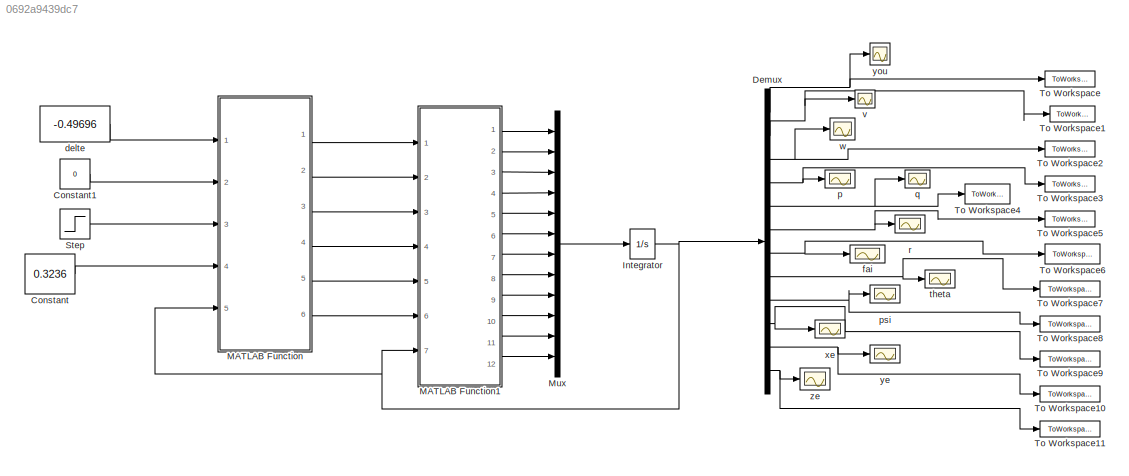
MODEL slx_0692a9439dc7
KIND model
CONFIG AbsTol = auto
CONFIG FixedStep = 0.1
CONFIG MaxStep = auto
CONFIG MinStep = auto
CONFIG RelTol = 1e-3
CONFIG SampleTimeConstraint = Unconstrained
CONFIG Solver = VariableStepAuto
CONFIG SolverMode = Auto
CONFIG SolverName = VariableStepAuto
CONFIG StartTime = 0.0
CONFIG StopTime = 5000
BLOCK [Constant] Constant
  Value = 0.3236
BLOCK [Constant] Constant1
  Value = 0
BLOCK [Demux] Demux
  DisplayOption = bar
  Outputs = 12
  Ports = [1, 12]
BLOCK [Integrator] Integrator
  InitialCondition = [189.1684 0 17.7568 0 0 0 0 0.0936 0 0 0 0]
  Ports = [1, 1]
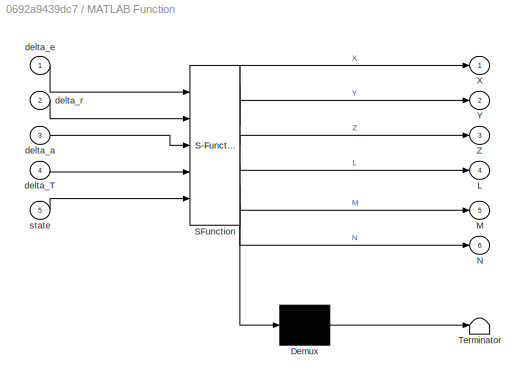
BLOCK [SubSystem] MATLAB Function
  ErrorFcn = Stateflow.Translate.translate
  PermitHierarchicalResolution = ExplicitOnly
  Ports = [5, 6]
  RequestExecContextInheritance = off
  SFBlockType = MATLAB Function
  TreatAsAtomicUnit = on
  Variant = off
BLOCK [Demux] MATLAB Function/ Demux 
  Outputs = 1
  Ports = [1, 1]
BLOCK [S-Function] MATLAB Function/ SFunction 
  EnableBusSupport = on
  FunctionName = sf_sfun
  PortCounts = [5 7]
  Ports = [5, 7]
  SFunctionDeploymentMode = off
  Tag = Stateflow S-Function Quan 2
BLOCK [Terminator] MATLAB Function/ Terminator 
BLOCK [Outport] MATLAB Function/L
  IconDisplay = Port number
  Port = 4
BLOCK [Outport] MATLAB Function/M
  IconDisplay = Port number
  Port = 5
BLOCK [Outport] MATLAB Function/N
  IconDisplay = Port number
  Port = 6
BLOCK [Outport] MATLAB Function/X
  IconDisplay = Port number
BLOCK [Outport] MATLAB Function/Y
  IconDisplay = Port number
  Port = 2
BLOCK [Outport] MATLAB Function/Z
  IconDisplay = Port number
  Port = 3
BLOCK [Inport] MATLAB Function/delta_T
  IconDisplay = Port number
  Port = 4
BLOCK [Inport] MATLAB Function/delta_a
  IconDisplay = Port number
  Port = 3
BLOCK [Inport] MATLAB Function/delta_e
  IconDisplay = Port number
BLOCK [Inport] MATLAB Function/delta_r
  IconDisplay = Port number
  Port = 2
BLOCK [Inport] MATLAB Function/state
  IconDisplay = Port number
  Port = 5
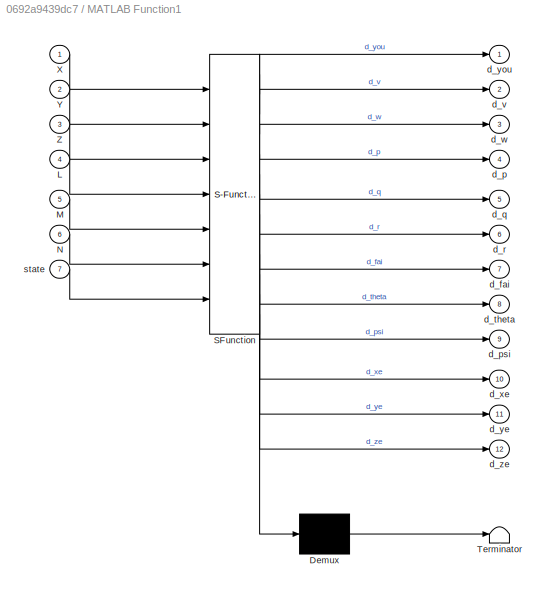
BLOCK [SubSystem] MATLAB Function1
  ErrorFcn = Stateflow.Translate.translate
  PermitHierarchicalResolution = ExplicitOnly
  Ports = [7, 12]
  RequestExecContextInheritance = off
  SFBlockType = MATLAB Function
  TreatAsAtomicUnit = on
  Variant = off
BLOCK [Demux] MATLAB Function1/ Demux 
  Outputs = 1
  Ports = [1, 1]
BLOCK [S-Function] MATLAB Function1/ SFunction 
  EnableBusSupport = on
  FunctionName = sf_sfun
  PortCounts = [7 13]
  Ports = [7, 13]
  SFunctionDeploymentMode = off
  Tag = Stateflow S-Function Quan 1
BLOCK [Terminator] MATLAB Function1/ Terminator 
BLOCK [Inport] MATLAB Function1/L
  IconDisplay = Port number
  Port = 4
BLOCK [Inport] MATLAB Function1/M
  IconDisplay = Port number
  Port = 5
BLOCK [Inport] MATLAB Function1/N
  IconDisplay = Port number
  Port = 6
BLOCK [Inport] MATLAB Function1/X
  IconDisplay = Port number
BLOCK [Inport] MATLAB Function1/Y
  IconDisplay = Port number
  Port = 2
BLOCK [Inport] MATLAB Function1/Z
  IconDisplay = Port number
  Port = 3
BLOCK [Outport] MATLAB Function1/d_fai
  IconDisplay = Port number
  Port = 7
BLOCK [Outport] MATLAB Function1/d_p
  IconDisplay = Port number
  Port = 4
BLOCK [Outport] MATLAB Function1/d_psi
  IconDisplay = Port number
  Port = 9
BLOCK [Outport] MATLAB Function1/d_q
  IconDisplay = Port number
  Port = 5
BLOCK [Outport] MATLAB Function1/d_r
  IconDisplay = Port number
  Port = 6
BLOCK [Outport] MATLAB Function1/d_theta
  IconDisplay = Port number
  Port = 8
BLOCK [Outport] MATLAB Function1/d_v
  IconDisplay = Port number
  Port = 2
BLOCK [Outport] MATLAB Function1/d_w
  IconDisplay = Port number
  Port = 3
BLOCK [Outport] MATLAB Function1/d_xe
  IconDisplay = Port number
  Port = 10
BLOCK [Outport] MATLAB Function1/d_ye
  IconDisplay = Port number
  Port = 11
BLOCK [Outport] MATLAB Function1/d_you
  IconDisplay = Port number
BLOCK [Outport] MATLAB Function1/d_ze
  IconDisplay = Port number
  Port = 12
BLOCK [Inport] MATLAB Function1/state
  IconDisplay = Port number
  Port = 7
BLOCK [Mux] Mux
  DisplayOption = bar
  Inputs = 12
  Ports = [12, 1]
BLOCK [Step] Step
  After = 0.0005
  SampleTime = 0
  Time = 0
BLOCK [ToWorkspace] To Workspace
  FixptAsFi = on
  MaxDataPoints = inf
  Ports = [1]
  SampleTime = -1
  Save2DSignal = 3-D array (concatenate along third dimension)
  SaveFormat = Timeseries
  VariableName = you
BLOCK [ToWorkspace] To Workspace1
  FixptAsFi = on
  MaxDataPoints = inf
  Ports = [1]
  SampleTime = -1
  Save2DSignal = 3-D array (concatenate along third dimension)
  SaveFormat = Timeseries
  VariableName = v
BLOCK [ToWorkspace] To Workspace10
  FixptAsFi = on
  MaxDataPoints = inf
  Ports = [1]
  SampleTime = -1
  Save2DSignal = 3-D array (concatenate along third dimension)
  SaveFormat = Timeseries
  VariableName = ye
BLOCK [ToWorkspace] To Workspace11
  FixptAsFi = on
  MaxDataPoints = inf
  Ports = [1]
  SampleTime = -1
  Save2DSignal = 3-D array (concatenate along third dimension)
  SaveFormat = Timeseries
  VariableName = ze
BLOCK [ToWorkspace] To Workspace2
  FixptAsFi = on
  MaxDataPoints = inf
  Ports = [1]
  SampleTime = -1
  Save2DSignal = 3-D array (concatenate along third dimension)
  SaveFormat = Timeseries
  VariableName = w
BLOCK [ToWorkspace] To Workspace3
  FixptAsFi = on
  MaxDataPoints = inf
  Ports = [1]
  SampleTime = -1
  Save2DSignal = 3-D array (concatenate along third dimension)
  SaveFormat = Timeseries
  VariableName = p
BLOCK [ToWorkspace] To Workspace4
  FixptAsFi = on
  MaxDataPoints = inf
  Ports = [1]
  SampleTime = -1
  Save2DSignal = 3-D array (concatenate along third dimension)
  SaveFormat = Timeseries
  VariableName = q
BLOCK [ToWorkspace] To Workspace5
  FixptAsFi = on
  MaxDataPoints = inf
  Ports = [1]
  SampleTime = -1
  Save2DSignal = 3-D array (concatenate along third dimension)
  SaveFormat = Timeseries
  VariableName = r
BLOCK [ToWorkspace] To Workspace6
  FixptAsFi = on
  MaxDataPoints = inf
  Ports = [1]
  SampleTime = -1
  Save2DSignal = 3-D array (concatenate along third dimension)
  SaveFormat = Timeseries
  VariableName = fai
BLOCK [ToWorkspace] To Workspace7
  FixptAsFi = on
  MaxDataPoints = inf
  Ports = [1]
  SampleTime = -1
  Save2DSignal = 3-D array (concatenate along third dimension)
  SaveFormat = Timeseries
  VariableName = theta
BLOCK [ToWorkspace] To Workspace8
  FixptAsFi = on
  MaxDataPoints = inf
  Ports = [1]
  SampleTime = -1
  Save2DSignal = 3-D array (concatenate along third dimension)
  SaveFormat = Timeseries
  VariableName = psi
BLOCK [ToWorkspace] To Workspace9
  FixptAsFi = on
  MaxDataPoints = inf
  Ports = [1]
  SampleTime = -1
  Save2DSignal = 3-D array (concatenate along third dimension)
  SaveFormat = Timeseries
  VariableName = xe
BLOCK [Constant] delte
  Value = -0.49696
BLOCK [Scope] fai
  Ports = [1]
  ScopeSpecificationString = Simulink.scopes.TimeScopeBlockCfg('CurrentConfiguration', extmgr.ConfigurationSet(extmgr.Configuration('Core','General UI',true),extmgr.Configuration('Core','Source UI',true),extmgr.Configuration('Sources','WiredSimulink',true,'DataLoggingVariableName','ScopeData6'),extmgr.Configuration('Visuals','Time Domain',true,'SerializedDisplays',{struct('MinYLimReal','-0.18366','MaxYLimReal','0.02041','YLab...<+1366ch>
BLOCK [Scope] p
  Ports = [1]
  ScopeSpecificationString = Simulink.scopes.TimeScopeBlockCfg('CurrentConfiguration', extmgr.ConfigurationSet(extmgr.Configuration('Core','General UI',true),extmgr.Configuration('Core','Source UI',true),extmgr.Configuration('Sources','WiredSimulink',true,'DataLoggingVariableName','ScopeData3'),extmgr.Configuration('Visuals','Time Domain',true,'SerializedDisplays',{struct('MinYLimReal','-0.00274','MaxYLimReal','0.00115','YLab...<+1366ch>
BLOCK [Scope] psi
  Ports = [1]
  ScopeSpecificationString = Simulink.scopes.TimeScopeBlockCfg('CurrentConfiguration', extmgr.ConfigurationSet(extmgr.Configuration('Core','General UI',true),extmgr.Configuration('Core','Source UI',true),extmgr.Configuration('Sources','WiredSimulink',true,'DataLoggingVariableName','ScopeData8'),extmgr.Configuration('Visuals','Time Domain',true,'SerializedDisplays',{struct('MinYLimReal','-45.91337','MaxYLimReal','5.10149','YLa...<+1370ch>
BLOCK [Scope] q
  Ports = [1]
  ScopeSpecificationString = Simulink.scopes.TimeScopeBlockCfg('CurrentConfiguration', extmgr.ConfigurationSet(extmgr.Configuration('Core','General UI',true),extmgr.Configuration('Core','Source UI',true),extmgr.Configuration('Sources','WiredSimulink',true,'DataLoggingVariableName','ScopeData4'),extmgr.Configuration('Visuals','Time Domain',true,'SerializedDisplays',{struct('MinYLimReal','-0.00017','MaxYLimReal','0.00156','YLab...<+1366ch>
BLOCK [Scope] r
  Ports = [1]
  ScopeSpecificationString = Simulink.scopes.TimeScopeBlockCfg('CurrentConfiguration', extmgr.ConfigurationSet(extmgr.Configuration('Core','General UI',true),extmgr.Configuration('Core','Source UI',true),extmgr.Configuration('Sources','WiredSimulink',true,'DataLoggingVariableName','ScopeData5'),extmgr.Configuration('Visuals','Time Domain',true,'SerializedDisplays',{struct('MinYLimReal','-0.00917','MaxYLimReal','0.00102','YLab...<+1366ch>
BLOCK [Scope] theta 
  Ports = [1]
  ScopeSpecificationString = Simulink.scopes.TimeScopeBlockCfg('CurrentConfiguration', extmgr.ConfigurationSet(extmgr.Configuration('Core','General UI',true),extmgr.Configuration('Core','Source UI',true),extmgr.Configuration('Sources','WiredSimulink',true,'DataLoggingVariableName','ScopeData7'),extmgr.Configuration('Visuals','Time Domain',true,'SerializedDisplays',{struct('MinYLimReal','0.08823','MaxYLimReal','0.09467','YLabe...<+1364ch>
BLOCK [Scope] v
  Ports = [1]
  ScopeSpecificationString = Simulink.scopes.TimeScopeBlockCfg('CurrentConfiguration', extmgr.ConfigurationSet(extmgr.Configuration('Core','General UI',true),extmgr.Configuration('Core','Source UI',true),extmgr.Configuration('Sources','WiredSimulink',true,'DataLoggingVariableName','ScopeData1'),extmgr.Configuration('Visuals','Time Domain',true,'SerializedDisplays',{struct('MinYLimReal','-0.11483','MaxYLimReal','0.01276','YLab...<+1366ch>
BLOCK [Scope] w
  Ports = [1]
  ScopeSpecificationString = Simulink.scopes.TimeScopeBlockCfg('CurrentConfiguration', extmgr.ConfigurationSet(extmgr.Configuration('Core','General UI',true),extmgr.Configuration('Core','Source UI',true),extmgr.Configuration('Sources','WiredSimulink',true,'DataLoggingVariableName','ScopeData2'),extmgr.Configuration('Visuals','Time Domain',true,'SerializedDisplays',{struct('MinYLimReal','17.51032','MaxYLimReal','17.78419','YLa...<+1372ch>
BLOCK [Scope] xe
  Ports = [1]
  ScopeSpecificationString = Simulink.scopes.TimeScopeBlockCfg('CurrentConfiguration', extmgr.ConfigurationSet(extmgr.Configuration('Core','General UI',true),extmgr.Configuration('Core','Source UI',true),extmgr.Configuration('Sources','WiredSimulink',true,'DataLoggingVariableName','ScopeData9'),extmgr.Configuration('Visuals','Time Domain',true,'SerializedDisplays',{struct('MinYLimReal','-118760.67806','MaxYLimReal','1068846.1...<+1440ch>
BLOCK [Scope] ye
  Ports = [1]
  ScopeSpecificationString = C++SS(StrPVP('SaveName','ScopeData10'),StrPVP('LimitDataPoints','on'),StrPVP('DataFormat','Array'),StrPVP('Decimation','1'),StrPVP('BlockParamSampleInput','off'))
BLOCK [Scope] you
  Ports = [1]
  ScopeSpecificationString = Simulink.scopes.TimeScopeBlockCfg('CurrentConfiguration', extmgr.ConfigurationSet(extmgr.Configuration('Core','General UI',true),extmgr.Configuration('Core','Source UI',true),extmgr.Configuration('Sources','WiredSimulink',true),extmgr.Configuration('Visuals','Time Domain',true,'SerializedDisplays',{struct('MinYLimReal','188.82936','MaxYLimReal','191.55341','YLabelReal','','MinYLimMag','188.82936',...<+1374ch>
BLOCK [Scope] ze 
  Ports = [1]
  ScopeSpecificationString = C++SS(StrPVP('SaveName','ScopeData11'),StrPVP('LimitDataPoints','on'),StrPVP('DataFormat','Array'),StrPVP('Decimation','1'),StrPVP('BlockParamSampleInput','off'))
LINE Constant1:1 -> MATLAB Function:2
LINE Constant:1 -> MATLAB Function:4
NET Demux:1 -> To Workspace:1, you:1
NET Demux:10 -> To Workspace9:1, xe:1
NET Demux:11 -> To Workspace10:1, ye:1
NET Demux:12 -> To Workspace11:1, ze :1
NET Demux:2 -> To Workspace1:1, v:1
NET Demux:3 -> To Workspace2:1, w:1
NET Demux:4 -> To Workspace3:1, p:1
NET Demux:5 -> To Workspace4:1, q:1
NET Demux:6 -> To Workspace5:1, r:1
NET Demux:7 -> To Workspace6:1, fai:1
NET Demux:8 -> To Workspace7:1, theta :1
NET Demux:9 -> To Workspace8:1, psi:1
NET Integrator:1 -> Demux:1, MATLAB Function1:7, MATLAB Function:5
LINE MATLAB Function1:1 -> Mux:1
LINE MATLAB Function1:10 -> Mux:10
LINE MATLAB Function1:11 -> Mux:11
LINE MATLAB Function1:12 -> Mux:12
LINE MATLAB Function1:2 -> Mux:2
LINE MATLAB Function1:3 -> Mux:3
LINE MATLAB Function1:4 -> Mux:4
LINE MATLAB Function1:5 -> Mux:5
LINE MATLAB Function1:6 -> Mux:6
LINE MATLAB Function1:7 -> Mux:7
LINE MATLAB Function1:8 -> Mux:8
LINE MATLAB Function1:9 -> Mux:9
LINE MATLAB Function:1 -> MATLAB Function1:1
LINE MATLAB Function:2 -> MATLAB Function1:2
LINE MATLAB Function:3 -> MATLAB Function1:3
LINE MATLAB Function:4 -> MATLAB Function1:4
LINE MATLAB Function:5 -> MATLAB Function1:5
LINE MATLAB Function:6 -> MATLAB Function1:6
LINE Mux:1 -> Integrator:1
LINE Step:1 -> MATLAB Function:3
LINE delte:1 -> MATLAB Function:1
note: NET lines group one-source signal fan-out (src -> all destinations, sorted); 1:1 wires keep LINE
CHART MATLAB Function1 states=1 transitions=1
  STATE_LABEL 'eML_blk_kernel()'
  STATE_LABEL 'SCRIPT:\nfunction [d_you,d_v,d_w,d_p,d_q,d_r,d_fai,d_theta,d_psi,d_xe,d_ye,d_ze] = fcn(X, Y, Z, L, M, N, state)\n%#codegen\n\nyou = state(1);\nv = state(2);\nw = state(3);\np = state(4);\nq = state(5);\nr = state(6);\nfai = state(7);\ntheta = state(8);\npsi = state(9);\nze = state(12);\n\nH = 10000 - ze;\nV = sqrt(you^2 + v^2 + w^2);\n\n%--------在1000米出ze为0-------%\nR = 6356766; g0 = 9.80665;\n\n%-------飞机的惯性数据（国际单位制）...<+1289ch>'
CHART MATLAB Function states=1 transitions=1
  STATE_LABEL 'eML_blk_kernel()'
  STATE_LABEL 'SCRIPT:\nfunction [X, Y, Z, L, M, N] = fcn(delta_e, delta_r, delta_a, delta_T, state)\n\nyou = state(1);\nv = state(2);\nw = state(3);\np = state(4);\nq = state(5);\nr = state(6);\nfai = state(7);\ntheta = state(8);\npsi = state(9);\nze = state(12);\n\nH = 10000 - ze;\nV = sqrt(you^2 + v^2 + w^2);\n\n%地球半径%\nR = 6356766; \n\n%-------飞机的常数（国际单位制）---------%\nc_= 3.4503;S = 27.8709;b = 9.144;r2d=57.29577951;\n\nVv = sqrt(y...<+3608ch>'
